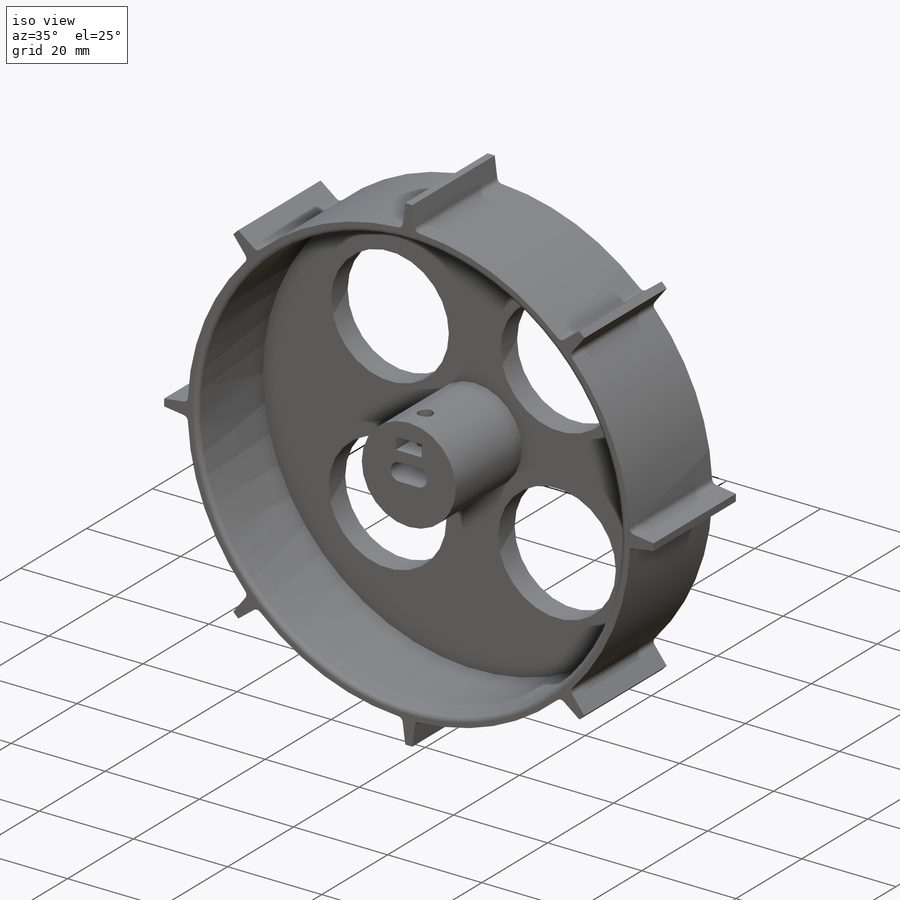
[diagram: iso view]
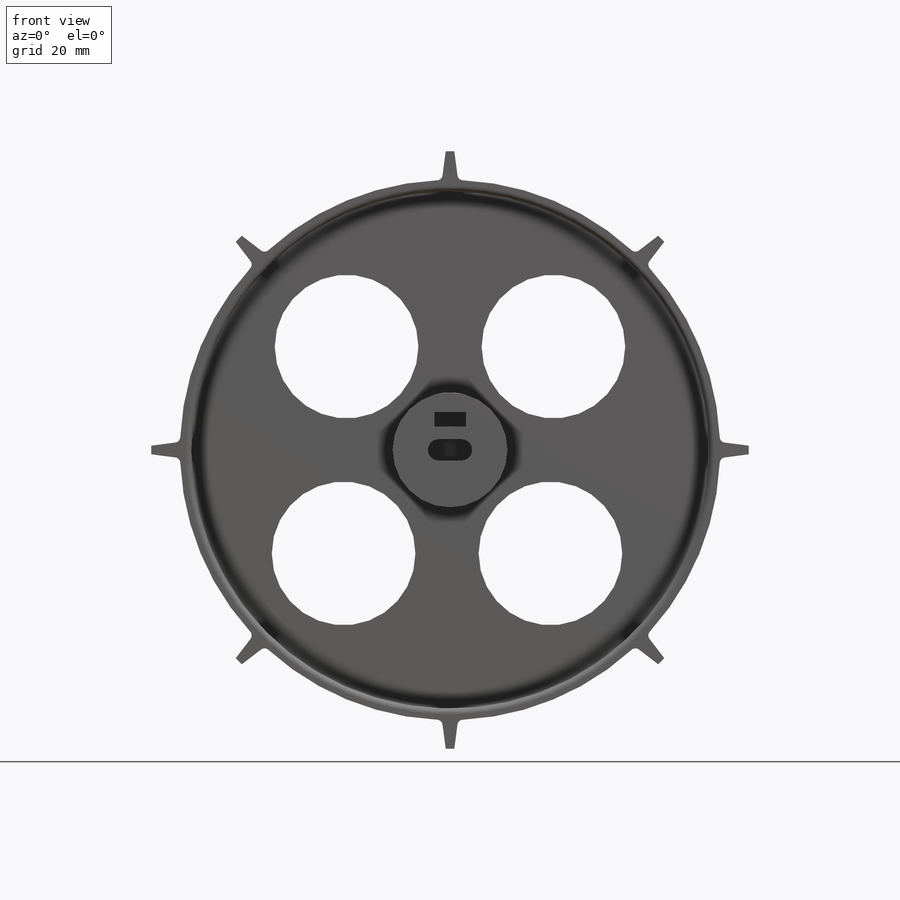
[diagram: front view]
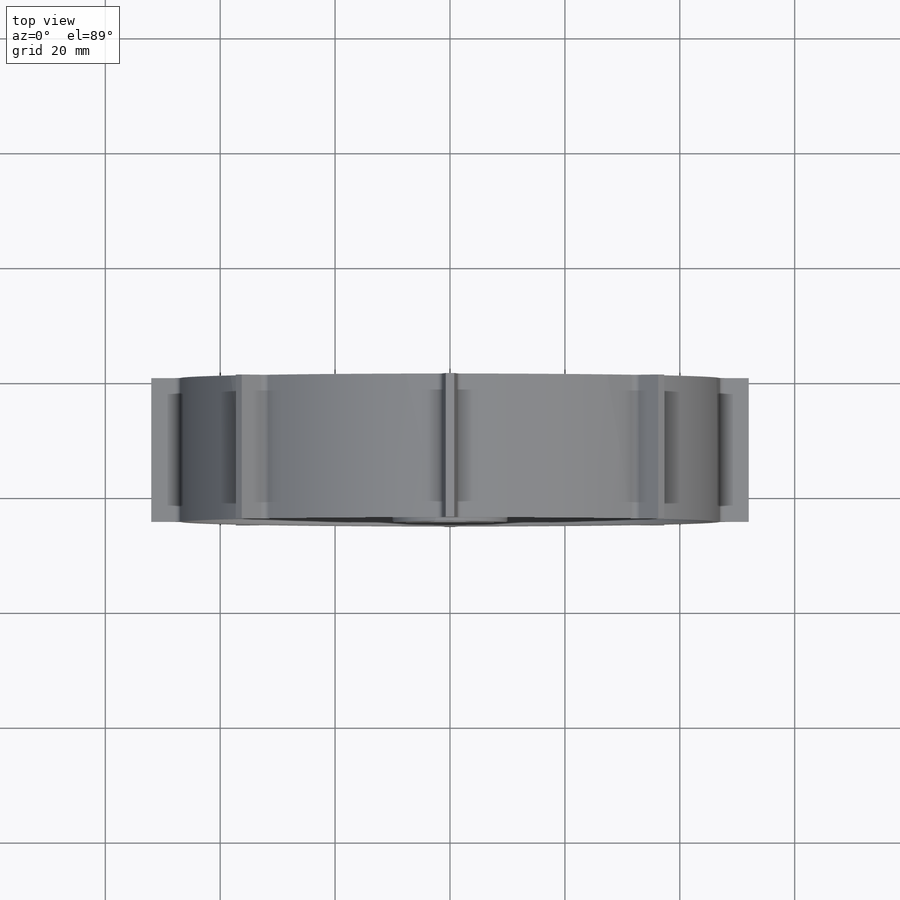
[diagram: top view]
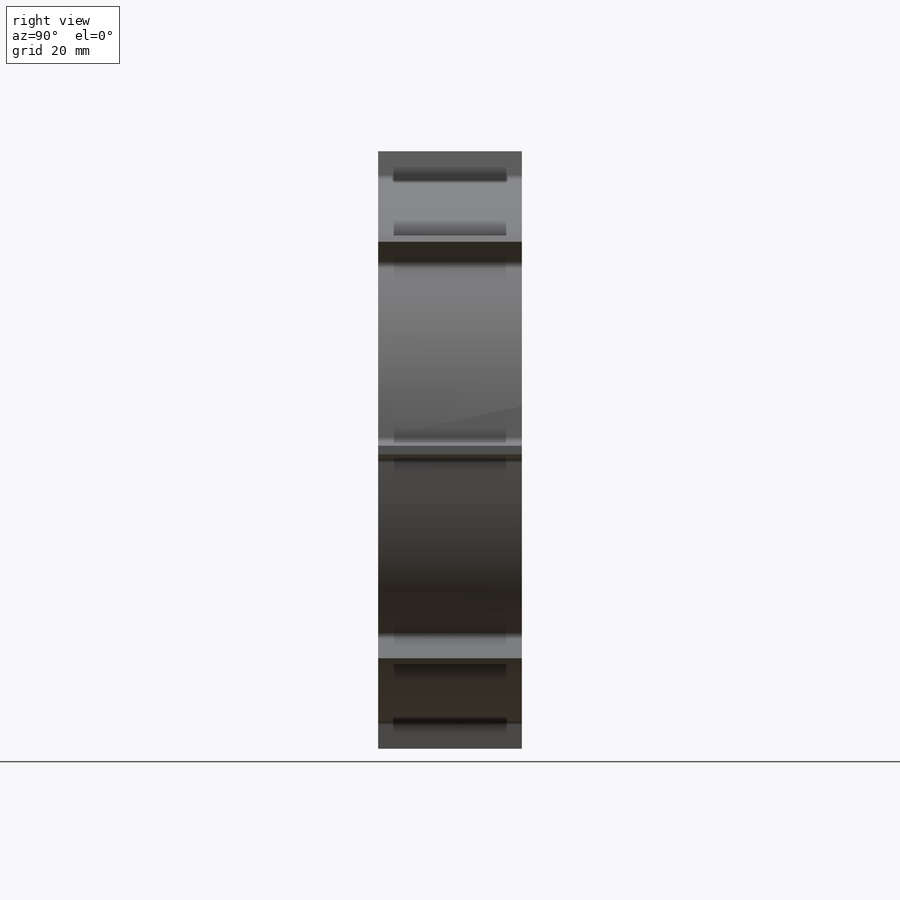
[diagram: right view]
SOLIDWORKS PART (.sldprt)
format: sldprt  version: not decoded by parser v0  size: 703,488 bytes
history: native  units: mm
features: sketch x14, cut_extrude x9, extrude x5, plane x3, fillet x2, material x1 + 1 further entry (+9 scaffold rows collapsed)
feature tree (44):
  scaffold x9  (default folders/planes/origin — collapsed)
  material  "Material <sin especificar>"
  "Anotaciones"  RD1=2.25mm RD2=3mm
  plane  "Alzado"
  plane  "Planta"
  plane  "Vista lateral"
  sketch  "Croquis1"  dims[c1.D1=90.0mm c1.D3=5.0mm c1.D4=1.5mm c1.D5=~5.072751mm c2.D5=7.5deg c2.D2=2.0mm]
  extrude  "Extruir1"  Depth=50mm
  fillet  "Redondeo1"  Radius=1mm
  sketch  "Croquis2"  dims[c1.D1=25.0mm c1.D2=20.0mm c2.D1=30.0mm c2.D2=15.0mm c2.D3=30.0mm c3.D1=15.0mm c3.D3=2.0mm c3.D4=1.0mm c3.D5=1.0mm c3.D6=1.0mm c3.D7=1.0mm]
  extrude  "Extruir2"  Depth=12mm
  fillet  "Redondeo2"  Radius=1mm
  sketch  "Croquis3"  dims[D1=33.0mm]
  extrude  "Extruir3"  Depth=12mm
  sketch  "Croquis4"  dims[D1=9.0mm D2=35.5mm]
  cut_extrude  "Extruir4"  Depth=20mm
  sketch  "Croquis5"  dims[D2=1.5mm D1=13.5mm]
  cut_extrude  "Extruir5"  Depth=20mm
  sketch  "Croquis6"  dims[c1.D2=5.0mm c1.D1=~7.605577mm c2.D1=45.0deg c2.D3=10.0mm c2.D4=~9.022741mm c3.D1=~9.91121mm c4.D1=22.5deg]
  cut_extrude  "Extruir6"  Depth=23mm
  sketch  "Croquis7"  dims[D1=90.0mm]
  cut_extrude  "Cortar-Extruir1"  Depth=50mm
  sketch  "Croquis8"
  cut_extrude  "Cortar-Extruir2"  Depth=25mm
  sketch  "Croquis9"  dims[D1=90.5mm]
  extrude  "Saliente-Extruir1"  Depth=5mm
  sketch  "Croquis10"  dims[D1=20.0mm]
  extrude  "Saliente-Extruir2"  Depth=20mm
  sketch  "Croquis14"  dims[c1.D2=3.0mm c1.D3=1.85mm c1.D1=4.0mm c2.D2=1.85mm]
  cut_extrude  "Cortar-Extruir3"  Depth=12mm
  sketch  "Croquis15"  dims[c1.D3=20.0mm c1.D4=20.0mm c1.D9=20.0mm c1.D10=20.0mm c1.D1=25.0mm c1.D2=25.0mm c2.D3=25.0mm c2.D4=25.0mm c2.D1=25.0mm c2.D2=25.0mm c3.D3=25.0mm c3.D4=25.0mm c3.D5=36.0mm c3.D6=35.0mm c3.D7=36.0mm c3.D8=36.0mm c3.D1=51.0mm c3.D2=51.0mm c3.D11=18.0mm c3.D12=~13.302971mm c4.D2=18.0mm c4.D3=18.0mm c4.D4=18.0mm c4.D9=~24.758837mm c4.D10=~25.455844mm c4.D12=~25.455844mm c4.D13=~25.455844mm c4.D1=36.0mm c5.D2=36.0mm c5.D3=36.0mm c5.D4=36.0mm c5.D5=18.0mm c5.D6=18.0mm c5.D7=18.0mm c5.D8=18.0mm c5.D9=18.0mm]
  cut_extrude  "Cortar-Extruir5"  Depth=12mm
  sketch  "Croquis16"  dims[D1=2.5mm D2=5.5mm D3=2.0mm]
  cut_extrude  "Cortar-Extruir6"  Depth=10mm
  sketch  "Croquis17"  dims[D1=3.0mm D2=5.0mm]
  cut_extrude  "Cortar-Extruir7"  Depth=10mm
decode coverage: 29 of 30 modeling features carry decoded parameters; 1 rows unclassified (native names shown)
note: ~ marks probable driven/reference dimensions
note: suppression state not decoded; provenance and decode notes live in map.json
